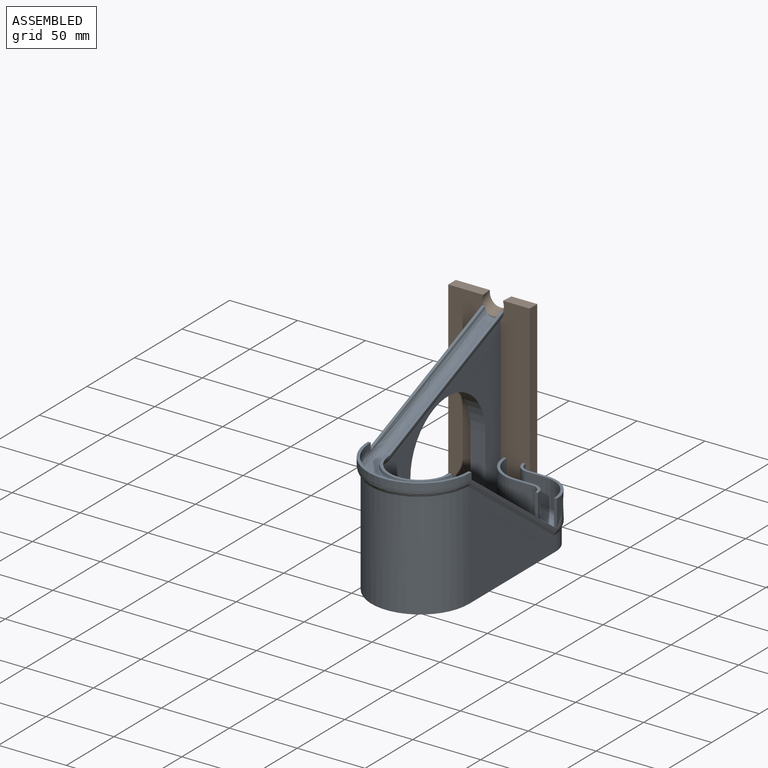
[diagram: assembled view]
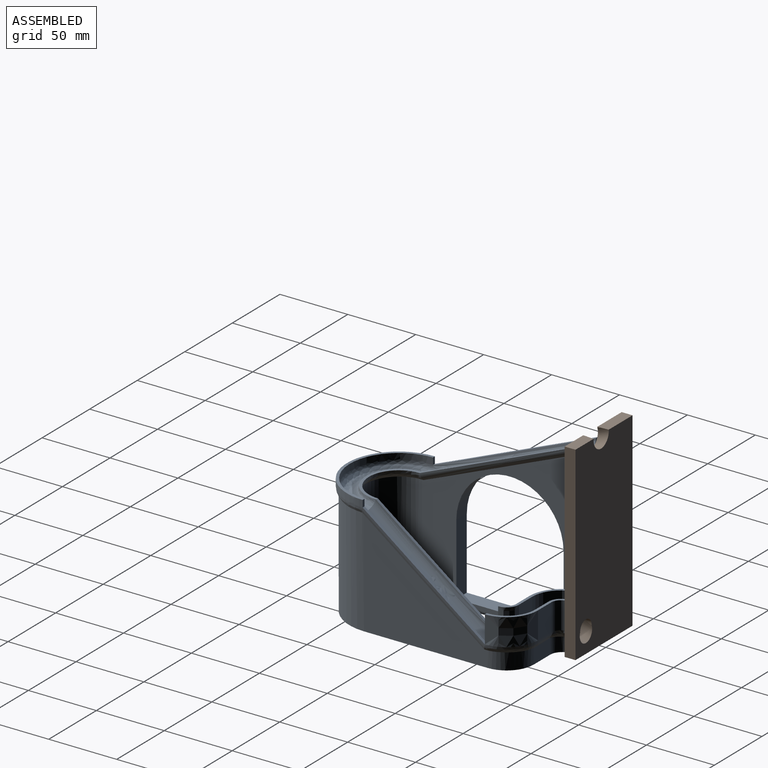
[diagram: assembled view, second angle]
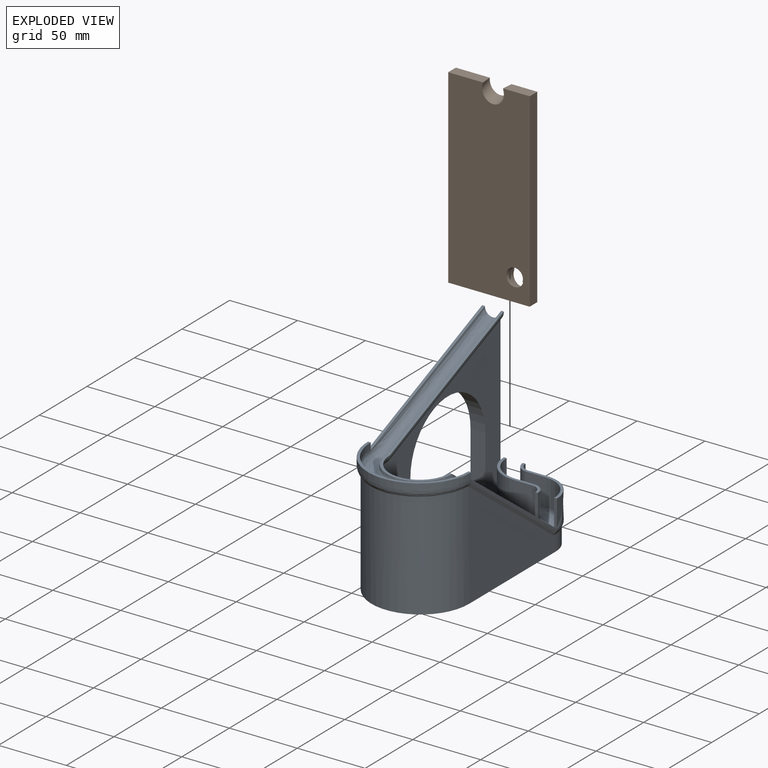
[diagram: exploded view]
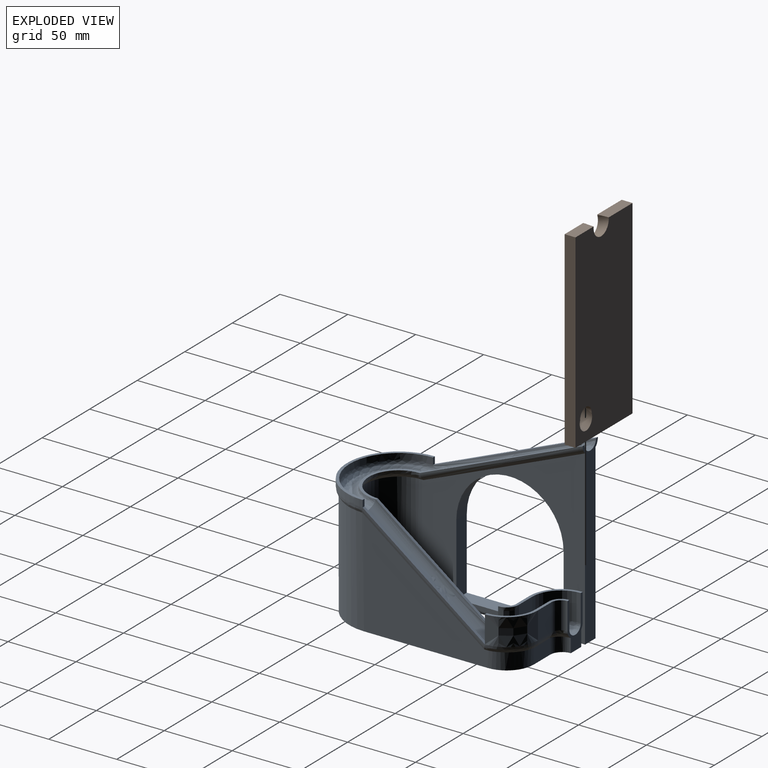
[diagram: exploded view, second angle]
ASSEMBLY  parts=2 mates=2
PART A: 65 faces, bbox 81.4x169.6x137.6 mm
  f0: plane 40.62x20.62mm, normal (0,1,0), area 222.8mm2, adj f2,f4,f15,f16,f32,f33,f47,f48
  f1: plane 134.7x17.7mm, normal (0,1,0), area 1426.5mm2, adj f2,f9,f24,f25,f26,f27,f38,f39
  f2: plane 156x72mm, normal (0,0,-1), area 4063.1mm2, adj f0,f1,f28,f29,f30,f31,f32,f33
  f3: bspline ~29.15x26.61mm, area 178.6mm2, adj f6,f10,f30,f31,f45
  f4: bspline ~29.15x26.61mm, area 73.4mm2, adj f0,f6,f32,f47
  f5: bspline ~18.41x16mm, area 18.5mm2, adj f7,f11,f35,f36
  f6: bspline ~20.15x16mm, area 75.7mm2, adj f3,f4,f31,f32,f46
  f7: bspline ~95.08x83.41mm, area 824.5mm2, adj f5,f8,f17,f36,f37
  f8: bspline ~76.82x45.55mm, area 482.4mm2, adj f7,f22,f26,f37,f39
  f9: bspline ~120x66mm, area 789.2mm2, adj f1,f21,f24,f38
  f10: bspline ~5.02x4.33mm, area 8.1mm2, adj f3,f19,f29,f30
  f11: bspline ~12.88x10.67mm, area 89.5mm2, adj f5,f13,f34,f35,f57
  f12: bspline ~25.63x21.6mm, area 427.9mm2, adj f14,f20,f50,f59
  f13: bspline ~20.15x16mm, area 94.4mm2, adj f11,f15,f33,f34,f56
  f14: bspline ~18.62x12mm, area 253.8mm2, adj f12,f16,f49,f53
  f15: bspline ~29.15x26.61mm, area 192.3mm2, adj f0,f13,f33,f55
  f16: bspline ~25.62x23.7mm, area 427.9mm2, adj f0,f14,f48,f54
  f17: plane 90x67mm, normal (0,0.6,0.8), area 224.4mm2, adj f7,f20,f22,f58
  f18: plane 90x67mm, normal (0,0.6,0.8), area 224.4mm2, adj f19,f20,f43,f51
  f19: bspline ~95.08x83.41mm, area 520.9mm2, adj f10,f18,f21,f28,f29
  f20: bspline ~94.1x79.53mm, area 2034.4mm2, adj f12,f17,f18,f23
  f21: bspline ~76.82x45.55mm, area 638.7mm2, adj f9,f19,f28,f38,f42
  f22: plane 48x24mm, normal (0,0,1), area 144.5mm2, adj f8,f17,f23,f25
  f23: bspline ~72.61x41.22mm, area 1709.4mm2, adj f20,f22,f27,f40
  f24: plane 120x50mm, normal (0,-0.38,0.92), area 260mm2, adj f1,f9,f27,f41
  f25: plane 120x50mm, normal (0,-0.38,0.92), area 260mm2, adj f1,f22,f26,f27
  f26: bspline ~120x66mm, area 789.2mm2, adj f1,f8,f25,f39
  f27: bspline ~120x62mm, area 2357.1mm2, adj f1,f23,f24,f25
  f28: cylinder r=36mm len=78.64mm, axis (0,0,-1), area 8837.2mm2, adj f2,f19,f21,f29,f38
  f29: plane 91x77.63mm, normal (1,0,0), area 3984.4mm2, adj f2,f10,f19,f28,f30
  f30: cylinder r=20mm len=20mm, axis (0,0,-1), area 369.2mm2, adj f2,f3,f10,f29,f31
  f31: plane 17.22x11.34mm, normal (0,1,0), area 188.7mm2, adj f2,f3,f6,f30,f32
  f32: cylinder r=9mm len=11.13mm, axis (0,0,-1), area 147.8mm2, adj f0,f2,f4,f6,f31
  f33: cylinder r=20mm len=20mm, axis (0,0,-1), area 342.1mm2, adj f0,f2,f13,f15,f34
  f34: plane 17.47x10.92mm, normal (0,-1,0), area 174.6mm2, adj f2,f11,f13,f33,f35
  f35: cylinder r=9mm len=10.36mm, axis (0,0,-1), area 143.4mm2, adj f2,f5,f11,f34,f36
  f36: plane 91x75.39mm, normal (-1,0,0), area 3781.4mm2, adj f2,f5,f7,f35,f37
  f37: cylinder r=25mm len=77.64mm, axis (0,0,-1), area 6069.3mm2, adj f2,f7,f8,f36,f39
  f38: plane 127.19x120mm, normal (-1,0,0), area 5662.3mm2, adj f1,f2,f9,f21,f28,f61,f62,f63
  f39: plane 127.19x120mm, normal (1,0,0), area 5662.3mm2, adj f1,f2,f8,f26,f37,f61,f62,f63
  f40: extruded ~72x36mm, area 565.3mm2, adj f23,f41,f43,f44
  f41: plane 5x2mm, normal (0,1,0), area 10mm2, adj f24,f40,f42,f44
  f42: extruded ~76x38mm, area 596.7mm2, adj f21,f41,f43,f44
  f43: plane 5x2mm, normal (0,1,0), area 10mm2, adj f18,f40,f42,f44
  f44: plane 76x38mm, normal (0,0,1), area 232.5mm2, adj f40,f41,f42,f43
  f45: extruded ~23x23mm, area 722.6mm2, adj f3,f46,f51,f52
  f46: plane 20x14mm, normal (0,1,0), area 280mm2, adj f6,f45,f47,f52
  f47: cylinder r=7mm len=20mm, axis (0,0,-1), area 219.9mm2, adj f0,f4,f46,f52
  f48: cylinder r=9mm len=20mm, axis (0,0,-1), area 282.7mm2, adj f0,f16,f49,f52
  f49: plane 20x14mm, normal (0,-1,0), area 280mm2, adj f14,f48,f50,f52
  f50: extruded ~21x21mm, area 659.8mm2, adj f12,f49,f51,f52
  f51: plane 20x2mm, normal (0,-1,0), area 40mm2, adj f18,f45,f50,f52
  f52: plane 46x30mm, normal (0,0,1), area 122.3mm2, adj f0,f45,f46,f47,f48,f49,f50,f51
  f53: plane 20x14mm, normal (0,1,0), area 280mm2, adj f14,f54,f59,f60
  f54: cylinder r=21mm len=21mm, axis (0,0,-1), area 659.7mm2, adj f0,f16,f53,f60
  f55: cylinder r=23mm len=23mm, axis (0,0,-1), area 722.6mm2, adj f0,f15,f56,f60
  f56: plane 20x14mm, normal (0,-1,0), area 280mm2, adj f13,f55,f57,f60
  f57: extruded ~20x7mm, area 219.9mm2, adj f11,f56,f58,f60
  f58: plane 20x2mm, normal (0,-1,0), area 40mm2, adj f17,f57,f59,f60
  f59: extruded ~20x9mm, area 282.8mm2, adj f12,f53,f58,f60
  f60: plane 46x30mm, normal (0,0,1), area 122.3mm2, adj f0,f53,f54,f55,f56,f57,f58,f59
  f61: plane 52.58x11mm, normal (0,1,0), area 578.4mm2, adj f38,f39,f62,f64
  f62: cylinder r=39.48mm len=78.97mm, axis (-1,0,0), area 1364.4mm2, adj f38,f39,f61,f63
  f63: plane 52.58x11mm, normal (0,-1,0), area 578.4mm2, adj f38,f39,f62,f64
  f64: plane 78.97x11mm, normal (0,0,1), area 868.6mm2, adj f38,f39,f61,f63
PART B: 14 faces, bbox 60x15.9x141.9 mm
  f0: plane 19.57x8mm, normal (0,0,1), area 154.7mm2, adj f1,f2,f5,f10,f13
  f1: plane 140x60mm, normal (0,-1,0), area 8107.3mm2, adj f0,f3,f4,f5,f6,f7,f8,f9
  f2: plane 140x60mm, normal (0,1,0), area 8113.2mm2, adj f0,f3,f6,f8,f10,f11,f12,f13
  f3: plane 60x8mm, normal (0,0,-1), area 480mm2, adj f1,f2,f12,f13
  f4: cylinder r=7.5mm len=2.1mm, axis (0,1,0), area 1.1mm2, adj f1,f10,f11
  f5: cylinder r=7.5mm len=2.1mm, axis (0,1,0), area 1.1mm2, adj f0,f1,f10
  f6: cylinder r=6mm len=12mm, axis (0,1,0), area 128mm2, adj f1,f2,f7,f8,f9
  f7: plane 7.12x3.37mm, normal (0,0.94,-0.34), area 2.9mm2, adj f1,f6,f8
  f8: cylinder r=6.5mm len=14.95mm, axis (0,-0.94,0.34), area 221.3mm2, adj f1,f2,f6,f7,f9
  f9: plane 7.12x3.37mm, normal (0,0.94,-0.34), area 2.9mm2, adj f1,f6,f8
  f10: cylinder r=8mm len=16mm, axis (0,0.94,0.34), area 251.7mm2, adj f0,f1,f2,f4,f5,f11
  f11: plane 25.57x8mm, normal (0,0,1), area 202.7mm2, adj f1,f2,f4,f10,f12
  f12: plane 140x8mm, normal (-1,0,0), area 1120mm2, adj f1,f2,f3,f11
  f13: plane 140x8mm, normal (1,0,0), area 1120mm2, adj f0,f1,f2,f3
PLACE A rot(axis=(0.39,-0.68,0.62),0deg) t=(4.7,-8.09,13.27)mm
PLACE B rot(axis=(0.39,-0.68,0.62),0deg) t=(-48.3,-0.09,-119.73)mm fixed
MATE planar A.f2 <-> B.f3  axis (0,0,-1) through (34.08,-84.61,-119.73)mm
MATE planar B.f1 <-> A.f1  axis (0,-1,0) through (1.35,-8.09,-50.24)mm
